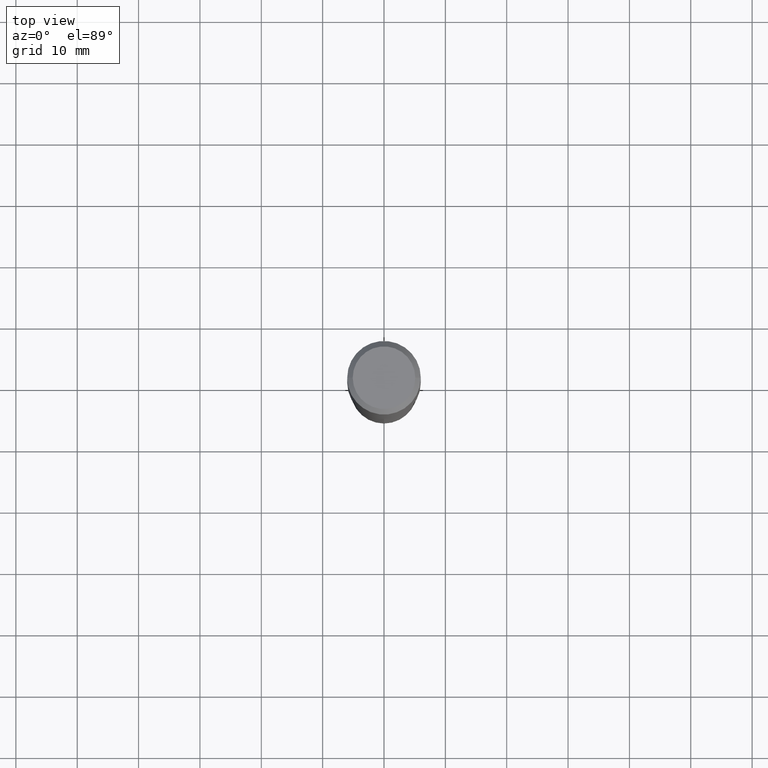
[diagram: clean part render]
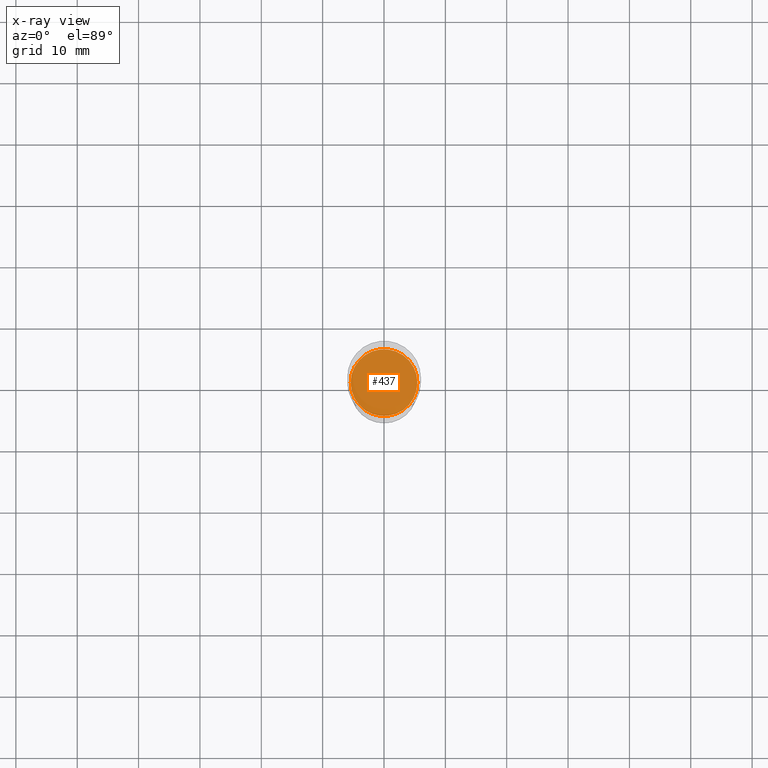
[diagram: x-ray — body ghosted, one internal face saturated and labeled with its STEP entity id]
A machine part, top view, then the same camera in x-ray: the body is ghosted and one INTERNAL B-rep face — a face not visible from any outside direction — is saturated and labeled: STEP entity #437.
In plain terms, the highlighted planar face has unit normal (-0, 0, 1).
Its self-contained STEP definition (entity closure, byte-faithful):
#5 = AXIS2_PLACEMENT_3D ( 'NONE', #256, #395, #471 ) ;
#7 = ORIENTED_EDGE ( 'NONE', *, *, #291, .F. ) ;
#85 = VERTEX_POINT ( 'NONE', #433 ) ;
#87 = AXIS2_PLACEMENT_3D ( 'NONE', #334, #228, #110 ) ;
#110 = DIRECTION ( 'NONE',  ( 1.000000000000000000, -6.982962677686266711E-15, 0.000000000000000000 ) ) ;
#119 = EDGE_LOOP ( 'NONE', ( #7, #273 ) ) ;
#120 = PLANE ( 'NONE',  #392 ) ;
#121 = FACE_OUTER_BOUND ( 'NONE', #119, .T. ) ;
#136 = VERTEX_POINT ( 'NONE', #212 ) ;
#165 = EDGE_CURVE ( 'NONE', #85, #136, #242, .T. ) ;
#198 = CARTESIAN_POINT ( 'NONE',  ( 4.525829119606832626E-29, -6.461684513797009689E-15, -1.850700000000000012 ) ) ;
#212 = CARTESIAN_POINT ( 'NONE',  ( 0.2140499999999999903, -7.956387674955755476E-15, -1.850700000000000012 ) ) ;
#228 = DIRECTION ( 'NONE',  ( -2.445468806185136597E-29, 3.491481338843145583E-15, 1.000000000000000000 ) ) ;
#238 = DIRECTION ( 'NONE',  ( -2.438088387897960049E-29, 3.491481338843145188E-15, 1.000000000000000000 ) ) ;
#242 = CIRCLE ( 'NONE', #5, 0.2140499999999999903 ) ;
#256 = CARTESIAN_POINT ( 'NONE',  ( 4.525829119606832626E-29, -6.461684513797009689E-15, -1.850700000000000012 ) ) ;
#273 = ORIENTED_EDGE ( 'NONE', *, *, #165, .F. ) ;
#291 = EDGE_CURVE ( 'NONE', #136, #85, #450, .T. ) ;
#334 = CARTESIAN_POINT ( 'NONE',  ( 4.525829119606832626E-29, -6.461684513797009689E-15, -1.850700000000000012 ) ) ;
#380 = DIRECTION ( 'NONE',  ( 1.000000000000000000, -6.982962677686265922E-15, 4.876176775795935793E-29 ) ) ;
#392 = AXIS2_PLACEMENT_3D ( 'NONE', #198, #238, #380 ) ;
#395 = DIRECTION ( 'NONE',  ( -2.445468806185136597E-29, 3.491481338843145583E-15, 1.000000000000000000 ) ) ;
#433 = CARTESIAN_POINT ( 'NONE',  ( -0.2140499999999999903, -4.938118560728404307E-15, -1.850700000000000012 ) ) ;
#437 = ADVANCED_FACE ( 'NONE', ( #121 ), #120, .F. ) ;
#450 = CIRCLE ( 'NONE', #87, 0.2140499999999999903 ) ;
#471 = DIRECTION ( 'NONE',  ( 1.000000000000000000, -6.982962677686266711E-15, 0.000000000000000000 ) ) ;